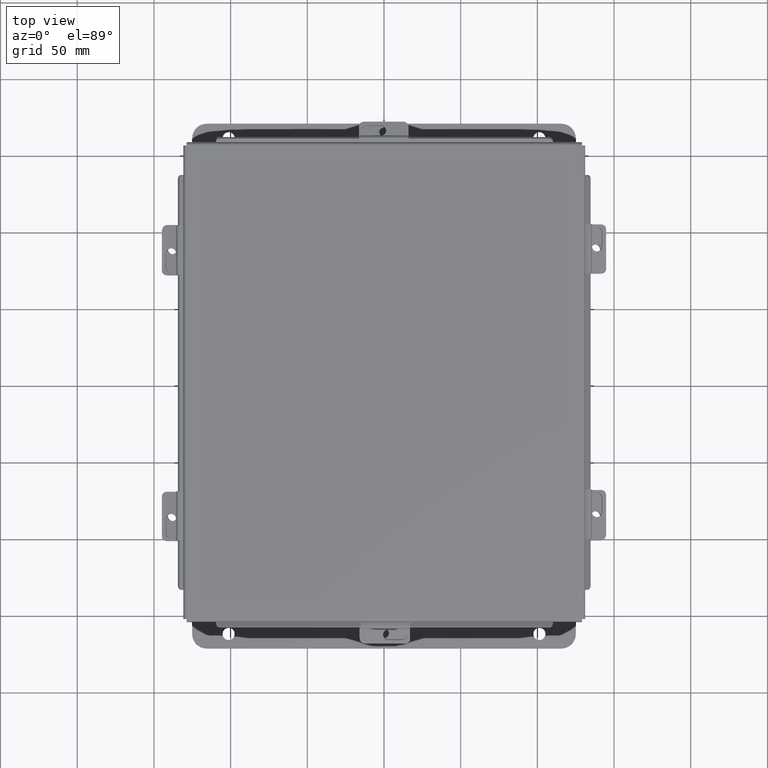
[diagram: clean part render]
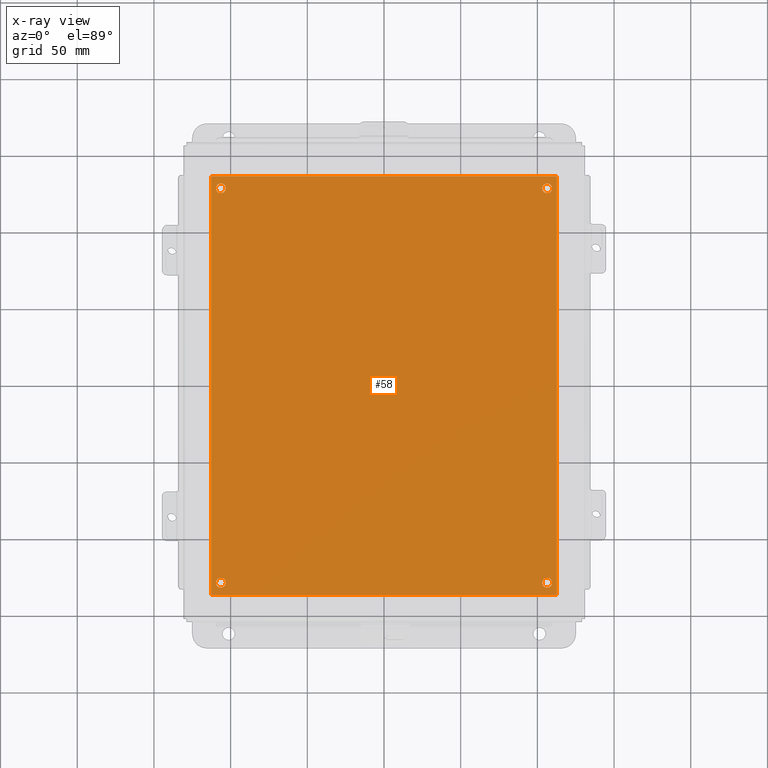
[diagram: x-ray — body ghosted, one internal face saturated and labeled with its STEP entity id]
A machine part, top view, then the same camera in x-ray: the body is ghosted and one INTERNAL B-rep face — a face not visible from any outside direction — is saturated and labeled: STEP entity #58.
In plain terms, the highlighted planar face has unit normal (0, 0, -1).
Its self-contained STEP definition (entity closure, byte-faithful):
#58 = ADVANCED_FACE ( 'NONE', ( #4641, #9632, #5832, #328, #9481 ), #2268, .F. ) ;
#61 = AXIS2_PLACEMENT_3D ( 'NONE', #1985, #4524, #4883 ) ;
#208 = VERTEX_POINT ( 'NONE', #388 ) ;
#224 = ORIENTED_EDGE ( 'NONE', *, *, #1494, .T. ) ;
#225 = CIRCLE ( 'NONE', #1819, 0.1250000000000004400 ) ;
#260 = CIRCLE ( 'NONE', #61, 0.1250000000000000300 ) ;
#317 = CARTESIAN_POINT ( 'NONE',  ( 0.0000000000000000000, 10.75000000000000200, 0.0000000000000000000 ) ) ;
#328 = FACE_BOUND ( 'NONE', #8242, .T. ) ;
#388 = CARTESIAN_POINT ( 'NONE',  ( 8.500000000000001800, 0.3120000000000036600, 0.0000000000000000000 ) ) ;
#478 = DIRECTION ( 'NONE',  ( 0.0000000000000000000, 1.000000000000000000, 0.0000000000000000000 ) ) ;
#516 = DIRECTION ( 'NONE',  ( -0.0000000000000000000, -1.000000000000000000, -0.0000000000000000000 ) ) ;
#570 = DIRECTION ( 'NONE',  ( -1.000000000000000000, 0.0000000000000000000, 0.0000000000000000000 ) ) ;
#633 = AXIS2_PLACEMENT_3D ( 'NONE', #2186, #3300, #570 ) ;
#823 = LINE ( 'NONE', #8065, #6553 ) ;
#892 = EDGE_CURVE ( 'NONE', #8446, #8869, #3835, .T. ) ;
#1048 = CIRCLE ( 'NONE', #5189, 0.1250000000000004400 ) ;
#1106 = AXIS2_PLACEMENT_3D ( 'NONE', #7029, #8210, #6694 ) ;
#1494 = EDGE_CURVE ( 'NONE', #5449, #3460, #8579, .T. ) ;
#1505 = ORIENTED_EDGE ( 'NONE', *, *, #7661, .F. ) ;
#1540 = VERTEX_POINT ( 'NONE', #7311 ) ;
#1606 = CARTESIAN_POINT ( 'NONE',  ( 8.750000000000001800, 0.3120000000000036600, 0.0000000000000000000 ) ) ;
#1665 = VERTEX_POINT ( 'NONE', #7908 ) ;
#1746 = VERTEX_POINT ( 'NONE', #4363 ) ;
#1752 = AXIS2_PLACEMENT_3D ( 'NONE', #3129, #3249, #9017 ) ;
#1819 = AXIS2_PLACEMENT_3D ( 'NONE', #6875, #2424, #7633 ) ;
#1948 = ORIENTED_EDGE ( 'NONE', *, *, #7700, .T. ) ;
#1985 = CARTESIAN_POINT ( 'NONE',  ( 0.2499999999999998100, 10.43799999999999900, 0.0000000000000000000 ) ) ;
#2035 = CIRCLE ( 'NONE', #1752, 0.1250000000000000600 ) ;
#2055 = CARTESIAN_POINT ( 'NONE',  ( 0.0000000000000000000, 0.0000000000000000000, 0.0000000000000000000 ) ) ;
#2086 = CARTESIAN_POINT ( 'NONE',  ( 8.625000000000000000, 10.43799999999999900, 0.0000000000000000000 ) ) ;
#2186 = CARTESIAN_POINT ( 'NONE',  ( 0.2500000000000020000, 0.3120000000000015000, 0.0000000000000000000 ) ) ;
#2213 = VECTOR ( 'NONE', #7609, 39.37007874015748100 ) ;
#2254 = CIRCLE ( 'NONE', #7023, 0.1250000000000004400 ) ;
#2268 = PLANE ( 'NONE',  #1106 ) ;
#2424 = DIRECTION ( 'NONE',  ( 0.0000000000000000000, 0.0000000000000000000, 1.000000000000000000 ) ) ;
#2698 = CARTESIAN_POINT ( 'NONE',  ( 8.875000000000000000, 0.0000000000000000000, 0.0000000000000000000 ) ) ;
#2835 = DIRECTION ( 'NONE',  ( -1.000000000000000000, 0.0000000000000000000, 0.0000000000000000000 ) ) ;
#2979 = CIRCLE ( 'NONE', #5250, 0.1250000000000004400 ) ;
#3103 = ORIENTED_EDGE ( 'NONE', *, *, #9528, .T. ) ;
#3129 = CARTESIAN_POINT ( 'NONE',  ( 0.2500000000000020000, 0.3120000000000015000, 0.0000000000000000000 ) ) ;
#3249 = DIRECTION ( 'NONE',  ( 0.0000000000000000000, 0.0000000000000000000, 1.000000000000000000 ) ) ;
#3300 = DIRECTION ( 'NONE',  ( 0.0000000000000000000, 0.0000000000000000000, 1.000000000000000000 ) ) ;
#3460 = VERTEX_POINT ( 'NONE', #3542 ) ;
#3487 = EDGE_LOOP ( 'NONE', ( #7537, #5528 ) ) ;
#3542 = CARTESIAN_POINT ( 'NONE',  ( 0.0000000000000000000, 0.0000000000000000000, 0.0000000000000000000 ) ) ;
#3809 = ORIENTED_EDGE ( 'NONE', *, *, #4551, .F. ) ;
#3835 = CIRCLE ( 'NONE', #633, 0.1250000000000000600 ) ;
#3874 = EDGE_CURVE ( 'NONE', #9678, #4610, #5281, .T. ) ;
#4073 = EDGE_CURVE ( 'NONE', #208, #5386, #2979, .T. ) ;
#4158 = LINE ( 'NONE', #6843, #2213 ) ;
#4206 = AXIS2_PLACEMENT_3D ( 'NONE', #6628, #5106, #4326 ) ;
#4294 = DIRECTION ( 'NONE',  ( -1.000000000000000000, -0.0000000000000000000, -0.0000000000000000000 ) ) ;
#4326 = DIRECTION ( 'NONE',  ( 1.000000000000000000, 0.0000000000000000000, 0.0000000000000000000 ) ) ;
#4363 = CARTESIAN_POINT ( 'NONE',  ( 8.750000000000000000, 10.43799999999999900, 0.0000000000000000000 ) ) ;
#4524 = DIRECTION ( 'NONE',  ( 0.0000000000000000000, 0.0000000000000000000, 1.000000000000000000 ) ) ;
#4551 = EDGE_CURVE ( 'NONE', #4610, #9678, #260, .T. ) ;
#4592 = EDGE_LOOP ( 'NONE', ( #1505, #5635 ) ) ;
#4599 = VECTOR ( 'NONE', #478, 39.37007874015748100 ) ;
#4610 = VERTEX_POINT ( 'NONE', #5689 ) ;
#4641 = FACE_BOUND ( 'NONE', #3487, .T. ) ;
#4746 = CARTESIAN_POINT ( 'NONE',  ( 8.625000000000001800, 0.3120000000000036600, 0.0000000000000000000 ) ) ;
#4883 = DIRECTION ( 'NONE',  ( 1.000000000000000000, 0.0000000000000000000, 0.0000000000000000000 ) ) ;
#5106 = DIRECTION ( 'NONE',  ( 0.0000000000000000000, 0.0000000000000000000, 1.000000000000000000 ) ) ;
#5147 = EDGE_CURVE ( 'NONE', #8869, #8446, #2035, .T. ) ;
#5189 = AXIS2_PLACEMENT_3D ( 'NONE', #2086, #7294, #2835 ) ;
#5250 = AXIS2_PLACEMENT_3D ( 'NONE', #4746, #8139, #7648 ) ;
#5281 = CIRCLE ( 'NONE', #4206, 0.1250000000000000300 ) ;
#5293 = ORIENTED_EDGE ( 'NONE', *, *, #3874, .F. ) ;
#5386 = VERTEX_POINT ( 'NONE', #1606 ) ;
#5449 = VERTEX_POINT ( 'NONE', #317 ) ;
#5528 = ORIENTED_EDGE ( 'NONE', *, *, #5147, .F. ) ;
#5635 = ORIENTED_EDGE ( 'NONE', *, *, #6952, .F. ) ;
#5689 = CARTESIAN_POINT ( 'NONE',  ( 0.1249999999999997900, 10.43799999999999900, 0.0000000000000000000 ) ) ;
#5729 = CARTESIAN_POINT ( 'NONE',  ( 0.1250000000000019200, 0.3120000000000015000, 0.0000000000000000000 ) ) ;
#5832 = FACE_BOUND ( 'NONE', #4592, .T. ) ;
#5957 = LINE ( 'NONE', #2698, #4599 ) ;
#6553 = VECTOR ( 'NONE', #4294, 39.37007874015748100 ) ;
#6628 = CARTESIAN_POINT ( 'NONE',  ( 0.2499999999999998100, 10.43799999999999900, 0.0000000000000000000 ) ) ;
#6694 = DIRECTION ( 'NONE',  ( -1.000000000000000000, 0.0000000000000000000, -0.0000000000000000000 ) ) ;
#6843 = CARTESIAN_POINT ( 'NONE',  ( 0.0000000000000000000, 0.0000000000000000000, 0.0000000000000000000 ) ) ;
#6875 = CARTESIAN_POINT ( 'NONE',  ( 8.625000000000001800, 0.3120000000000036600, 0.0000000000000000000 ) ) ;
#6952 = EDGE_CURVE ( 'NONE', #1665, #1746, #2254, .T. ) ;
#6979 = DIRECTION ( 'NONE',  ( -1.000000000000000000, 0.0000000000000000000, 0.0000000000000000000 ) ) ;
#7014 = DIRECTION ( 'NONE',  ( 0.0000000000000000000, 0.0000000000000000000, 1.000000000000000000 ) ) ;
#7023 = AXIS2_PLACEMENT_3D ( 'NONE', #7041, #7014, #6979 ) ;
#7029 = CARTESIAN_POINT ( 'NONE',  ( 0.0000000000000000000, 0.0000000000000000000, 0.0000000000000000000 ) ) ;
#7041 = CARTESIAN_POINT ( 'NONE',  ( 8.625000000000000000, 10.43799999999999900, 0.0000000000000000000 ) ) ;
#7294 = DIRECTION ( 'NONE',  ( 0.0000000000000000000, 0.0000000000000000000, 1.000000000000000000 ) ) ;
#7311 = CARTESIAN_POINT ( 'NONE',  ( 8.875000000000000000, 10.75000000000000200, 0.0000000000000000000 ) ) ;
#7396 = CARTESIAN_POINT ( 'NONE',  ( 0.3749999999999998300, 10.43799999999999900, 0.0000000000000000000 ) ) ;
#7498 = VERTEX_POINT ( 'NONE', #7839 ) ;
#7537 = ORIENTED_EDGE ( 'NONE', *, *, #892, .F. ) ;
#7563 = CARTESIAN_POINT ( 'NONE',  ( 0.3750000000000020000, 0.3120000000000015000, 0.0000000000000000000 ) ) ;
#7609 = DIRECTION ( 'NONE',  ( 1.000000000000000000, 0.0000000000000000000, 0.0000000000000000000 ) ) ;
#7633 = DIRECTION ( 'NONE',  ( 1.000000000000000000, 0.0000000000000000000, 0.0000000000000000000 ) ) ;
#7648 = DIRECTION ( 'NONE',  ( 1.000000000000000000, 0.0000000000000000000, 0.0000000000000000000 ) ) ;
#7661 = EDGE_CURVE ( 'NONE', #1746, #1665, #1048, .T. ) ;
#7700 = EDGE_CURVE ( 'NONE', #1540, #5449, #823, .T. ) ;
#7839 = CARTESIAN_POINT ( 'NONE',  ( 8.875000000000000000, 0.0000000000000000000, 0.0000000000000000000 ) ) ;
#7908 = CARTESIAN_POINT ( 'NONE',  ( 8.500000000000000000, 10.43799999999999900, 0.0000000000000000000 ) ) ;
#8065 = CARTESIAN_POINT ( 'NONE',  ( 0.0000000000000000000, 10.75000000000000200, 0.0000000000000000000 ) ) ;
#8139 = DIRECTION ( 'NONE',  ( 0.0000000000000000000, 0.0000000000000000000, 1.000000000000000000 ) ) ;
#8210 = DIRECTION ( 'NONE',  ( 0.0000000000000000000, 0.0000000000000000000, -1.000000000000000000 ) ) ;
#8242 = EDGE_LOOP ( 'NONE', ( #5293, #3809 ) ) ;
#8263 = EDGE_LOOP ( 'NONE', ( #224, #9086, #3103, #1948 ) ) ;
#8446 = VERTEX_POINT ( 'NONE', #7563 ) ;
#8486 = VECTOR ( 'NONE', #516, 39.37007874015748100 ) ;
#8579 = LINE ( 'NONE', #2055, #8486 ) ;
#8869 = VERTEX_POINT ( 'NONE', #5729 ) ;
#9012 = EDGE_LOOP ( 'NONE', ( #9342, #9240 ) ) ;
#9017 = DIRECTION ( 'NONE',  ( -1.000000000000000000, 0.0000000000000000000, 0.0000000000000000000 ) ) ;
#9086 = ORIENTED_EDGE ( 'NONE', *, *, #9287, .T. ) ;
#9240 = ORIENTED_EDGE ( 'NONE', *, *, #4073, .F. ) ;
#9287 = EDGE_CURVE ( 'NONE', #3460, #7498, #4158, .T. ) ;
#9299 = EDGE_CURVE ( 'NONE', #5386, #208, #225, .T. ) ;
#9342 = ORIENTED_EDGE ( 'NONE', *, *, #9299, .F. ) ;
#9481 = FACE_OUTER_BOUND ( 'NONE', #8263, .T. ) ;
#9528 = EDGE_CURVE ( 'NONE', #7498, #1540, #5957, .T. ) ;
#9632 = FACE_BOUND ( 'NONE', #9012, .T. ) ;
#9678 = VERTEX_POINT ( 'NONE', #7396 ) ;